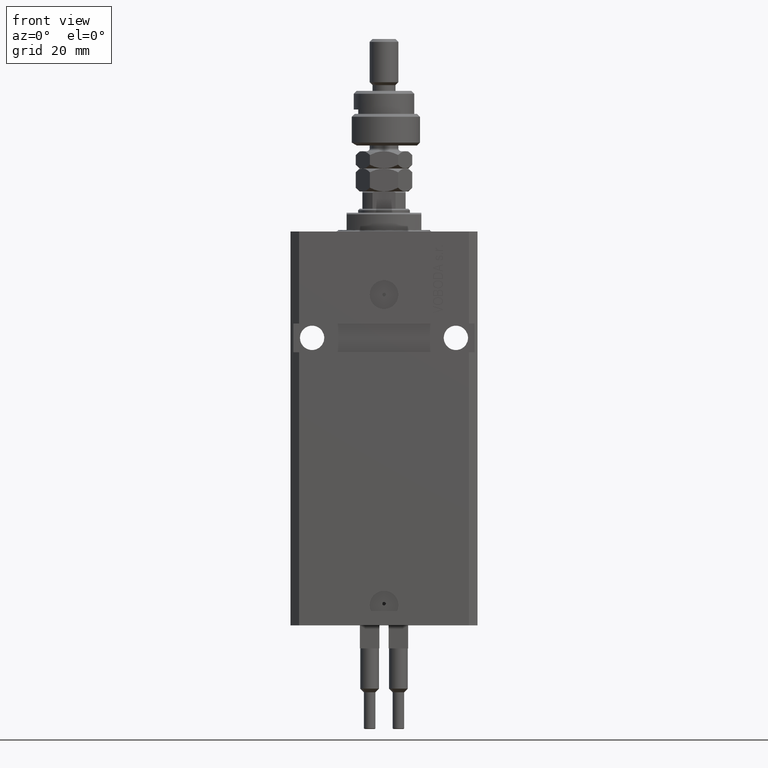
[diagram: clean part render]
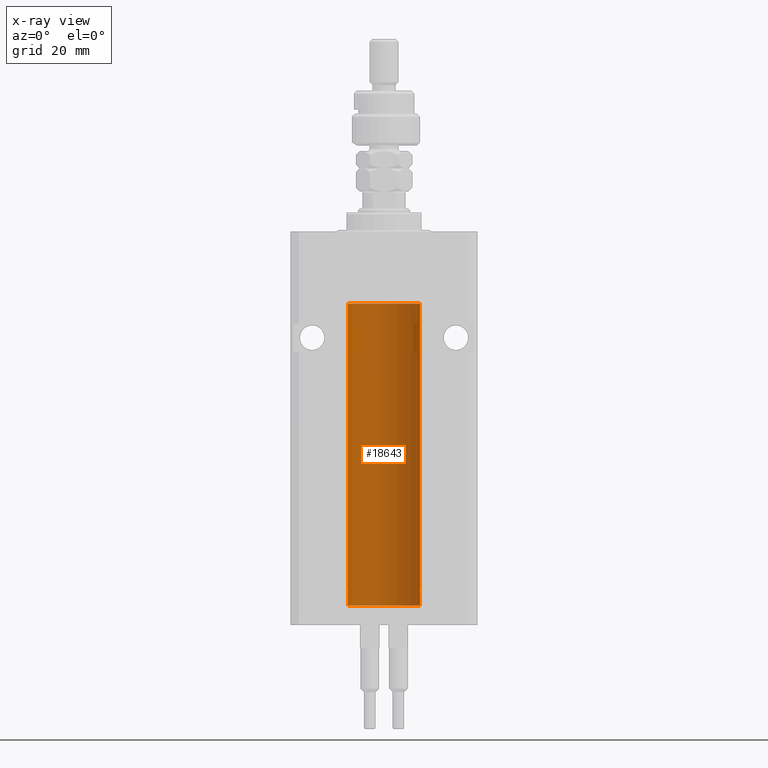
[diagram: x-ray — body ghosted, one internal face saturated and labeled with its STEP entity id]
A machine part, front view, then the same camera in x-ray: the body is ghosted and one INTERNAL B-rep face — a face not visible from any outside direction — is saturated and labeled: STEP entity #18643.
In plain terms, the highlighted cylindrical surface (edge-blend (fillet) strip) has radius 12.5 mm, axis along (0, 0, 1).
Its self-contained STEP definition (entity closure, byte-faithful):
#370 = EDGE_CURVE ( 'NONE', #4756, #39577, #29270, .T. ) ;
#867 = CARTESIAN_POINT ( 'NONE',  ( 0.000000000000000000, 0.000000000000000000, -130.0999999999999943 ) ) ;
#1098 = CARTESIAN_POINT ( 'NONE',  ( -12.50000000000000000, 1.530808498934191521E-15, -130.0999999999999943 ) ) ;
#1127 = FACE_OUTER_BOUND ( 'NONE', #25024, .T. ) ;
#1339 = ORIENTED_EDGE ( 'NONE', *, *, #50757, .T. ) ;
#1385 = DIRECTION ( 'NONE',  ( 1.000000000000000000, 0.000000000000000000, 0.000000000000000000 ) ) ;
#1662 = CARTESIAN_POINT ( 'NONE',  ( 12.50000000000017941, 3.868073647803008074E-13, -124.3749999999964047 ) ) ;
#1731 = VERTEX_POINT ( 'NONE', #20341 ) ;
#1982 = CARTESIAN_POINT ( 'NONE',  ( 12.48436522214887745, 0.6249999999996828093, -124.9184733946234758 ) ) ;
#2206 = CARTESIAN_POINT ( 'NONE',  ( -12.48436376893640265, 0.6250290278979852010, -125.0813208282447135 ) ) ;
#2490 = CARTESIAN_POINT ( 'NONE',  ( 12.49012055744648642, 0.5002956126656095126, -124.6164171020240445 ) ) ;
#3106 = CARTESIAN_POINT ( 'NONE',  ( 12.50000000000000000, 0.000000000000000000, -130.0999999999999943 ) ) ;
#3962 = AXIS2_PLACEMENT_3D ( 'NONE', #867, #21100, #1385 ) ;
#4138 = DIRECTION ( 'NONE',  ( -0.000000000000000000, -0.000000000000000000, 1.000000000000000000 ) ) ;
#4158 = VERTEX_POINT ( 'NONE', #16220 ) ;
#4756 = VERTEX_POINT ( 'NONE', #48713 ) ;
#5981 = VECTOR ( 'NONE', #14771, 1000.000000000000000 ) ;
#6556 = VECTOR ( 'NONE', #49105, 1000.000000000000000 ) ;
#6669 = CARTESIAN_POINT ( 'NONE',  ( 12.48436522214885613, 0.6250000000001550982, -125.1631274754030585 ) ) ;
#9092 = CARTESIAN_POINT ( 'NONE',  ( 0.000000000000000000, 0.000000000000000000, -130.0999999999999943 ) ) ;
#9242 = CARTESIAN_POINT ( 'NONE',  ( 12.48520578595315023, 0.6087855079133756009, -124.8365671750934780 ) ) ;
#9395 = LINE ( 'NONE', #1098, #6556 ) ;
#9401 = CARTESIAN_POINT ( 'NONE',  ( 0.000000000000000000, 0.000000000000000000, -25.10000000000000142 ) ) ;
#10046 = CARTESIAN_POINT ( 'NONE',  ( 12.49625698805480845, 0.3151108292486959339, -125.5459369568817038 ) ) ;
#10757 = CARTESIAN_POINT ( 'NONE',  ( -12.50000000000000178, 0.08260426088727608473, -124.3749999999999858 ) ) ;
#10883 = LINE ( 'NONE', #3106, #5981 ) ;
#12178 = CARTESIAN_POINT ( 'NONE',  ( 12.50000000000000000, 0.000000000000000000, -130.0999999999999943 ) ) ;
#13038 = DIRECTION ( 'NONE',  ( 0.000000000000000000, 0.000000000000000000, 1.000000000000000000 ) ) ;
#13144 = CARTESIAN_POINT ( 'NONE',  ( 12.49999999999999467, 0.1631389616600898151, -124.3750000000002274 ) ) ;
#13579 = VERTEX_POINT ( 'NONE', #49196 ) ;
#13656 = CARTESIAN_POINT ( 'NONE',  ( 12.48810305280568222, 0.5461368461738498326, -124.6852546614267538 ) ) ;
#13679 = CARTESIAN_POINT ( 'NONE',  ( 12.50000000000000000, 5.055633433180616021E-15, -125.6250000000000142 ) ) ;
#14494 = VERTEX_POINT ( 'NONE', #39318 ) ;
#14581 = ORIENTED_EDGE ( 'NONE', *, *, #370, .T. ) ;
#14771 = DIRECTION ( 'NONE',  ( -0.000000000000000000, -0.000000000000000000, 1.000000000000000000 ) ) ;
#16220 = CARTESIAN_POINT ( 'NONE',  ( -12.50000000000000000, -1.890568805888175348E-14, -124.3750000000000000 ) ) ;
#16322 = LINE ( 'NONE', #12178, #20755 ) ;
#17138 = CARTESIAN_POINT ( 'NONE',  ( -12.49631005746706691, 0.3253680783018559897, -125.5585674046538998 ) ) ;
#17315 = CARTESIAN_POINT ( 'NONE',  ( 12.49421963472024544, 0.3844519291903631952, -125.4994730364704907 ) ) ;
#17452 = B_SPLINE_CURVE_WITH_KNOTS ( 'NONE', 3,
 ( #13679, #33406, #45592, #10046, #17315, #17838, #6669, #25358 ),
 .UNSPECIFIED., .F., .F.,
 ( 4, 2, 2, 4 ),
 ( 4.913018323501965315E-18, 0.0002443481056285863075, 0.0004886962112571676276, 0.0009773924225142717210 ),
 .UNSPECIFIED. ) ;
#17838 = CARTESIAN_POINT ( 'NONE',  ( 12.48809900631782099, 0.5573988467445673001, -125.3264014793547290 ) ) ;
#18038 = CARTESIAN_POINT ( 'NONE',  ( -12.48809959379011758, 0.5462151254764870956, -125.3146137048161677 ) ) ;
#18168 = B_SPLINE_CURVE_WITH_KNOTS ( 'NONE', 3,
 ( #23195, #10757, #26588, #22683, #38525, #33865, #38782, #2206, #50719, #18038, #35403, #17138, #27616, #35908 ),
 .UNSPECIFIED., .F., .F.,
 ( 4, 2, 2, 2, 2, 2, 4 ),
 ( 3.496117753580553008E-18, 0.0002442924852390892100, 0.0004885849704781749505, 0.0009771699409563759219, 0.001221462426195476462, 0.001465754911434576785, 0.001954339881912777865 ),
 .UNSPECIFIED. ) ;
#18275 = AXIS2_PLACEMENT_3D ( 'NONE', #9092, #24915, #35150 ) ;
#18643 = ADVANCED_FACE ( 'NONE', ( #1127 ), #24488, .F. ) ;
#18752 = CIRCLE ( 'NONE', #46100, 12.50000000000000000 ) ;
#19159 = ORIENTED_EDGE ( 'NONE', *, *, #22134, .T. ) ;
#20125 = DIRECTION ( 'NONE',  ( -0.000000000000000000, -0.000000000000000000, 1.000000000000000000 ) ) ;
#20341 = CARTESIAN_POINT ( 'NONE',  ( -12.50000000000000000, 1.530808498934191521E-15, -25.10000000000000142 ) ) ;
#20543 = ORIENTED_EDGE ( 'NONE', *, *, #31306, .T. ) ;
#20755 = VECTOR ( 'NONE', #4138, 1000.000000000000000 ) ;
#21100 = DIRECTION ( 'NONE',  ( -0.000000000000000000, -0.000000000000000000, 1.000000000000000000 ) ) ;
#21433 = EDGE_CURVE ( 'NONE', #4158, #1731, #9395, .T. ) ;
#21963 = CARTESIAN_POINT ( 'NONE',  ( 12.48436522214846711, 0.6250000000078859141, -124.9999999999992326 ) ) ;
#22134 = EDGE_CURVE ( 'NONE', #13579, #4756, #17452, .T. ) ;
#22683 = CARTESIAN_POINT ( 'NONE',  ( -12.49625855304193855, 0.3150454781037954621, -124.4540280029748658 ) ) ;
#23195 = CARTESIAN_POINT ( 'NONE',  ( -12.50000000000000000, -1.890568805888175348E-14, -124.3750000000000000 ) ) ;
#24488 = CYLINDRICAL_SURFACE ( 'NONE', #3962, 12.50000000000000000 ) ;
#24896 = CIRCLE ( 'NONE', #18275, 12.50000000000000000 ) ;
#24915 = DIRECTION ( 'NONE',  ( 0.000000000000000000, 0.000000000000000000, 1.000000000000000000 ) ) ;
#25024 = EDGE_LOOP ( 'NONE', ( #40726, #42074, #29669, #19159, #14581, #20543, #1339, #33672, #29211 ) ) ;
#25358 = CARTESIAN_POINT ( 'NONE',  ( 12.48436522214846711, 0.6250000000078859141, -124.9999999999992326 ) ) ;
#26559 = EDGE_CURVE ( 'NONE', #43472, #48081, #35451, .T. ) ;
#26588 = CARTESIAN_POINT ( 'NONE',  ( -12.49915784441387068, 0.1636601911727856851, -124.3912681898942765 ) ) ;
#27616 = CARTESIAN_POINT ( 'NONE',  ( -12.49999999999999467, 0.1631761135151251485, -125.6249999999999005 ) ) ;
#28543 = EDGE_CURVE ( 'NONE', #4158, #48081, #18168, .T. ) ;
#28557 = EDGE_CURVE ( 'NONE', #14494, #43472, #24896, .T. ) ;
#28865 = DIRECTION ( 'NONE',  ( 1.000000000000000000, 0.000000000000000000, 0.000000000000000000 ) ) ;
#29211 = ORIENTED_EDGE ( 'NONE', *, *, #28543, .T. ) ;
#29270 = B_SPLINE_CURVE_WITH_KNOTS ( 'NONE', 3,
 ( #21963, #1982, #9242, #13656, #2490, #29492, #13144, #45323 ),
 .UNSPECIFIED., .F., .F.,
 ( 4, 2, 2, 4 ),
 ( 0.0009773924225142717210, 0.001221629287363824694, 0.001465866152213377450, 0.001954339881912483395 ),
 .UNSPECIFIED. ) ;
#29492 = CARTESIAN_POINT ( 'NONE',  ( 12.49631206032075781, 0.3252904079142953098, -124.4413970021492872 ) ) ;
#29669 = ORIENTED_EDGE ( 'NONE', *, *, #35791, .T. ) ;
#29818 = CARTESIAN_POINT ( 'NONE',  ( 12.50000000000000000, 0.000000000000000000, -25.10000000000000142 ) ) ;
#31306 = EDGE_CURVE ( 'NONE', #39577, #43675, #10883, .T. ) ;
#33406 = CARTESIAN_POINT ( 'NONE',  ( 12.50000000000000000, 0.08262306818362785688, -125.6249999999999858 ) ) ;
#33672 = ORIENTED_EDGE ( 'NONE', *, *, #21433, .F. ) ;
#33865 = CARTESIAN_POINT ( 'NONE',  ( -12.48810268015257563, 0.5573155909661203777, -124.6734741009386909 ) ) ;
#33947 = VECTOR ( 'NONE', #20125, 1000.000000000000000 ) ;
#34802 = CARTESIAN_POINT ( 'NONE',  ( -12.50000000000000000, 1.530808498934191521E-15, -130.0999999999999943 ) ) ;
#35150 = DIRECTION ( 'NONE',  ( 1.000000000000000000, 0.000000000000000000, 0.000000000000000000 ) ) ;
#35403 = CARTESIAN_POINT ( 'NONE',  ( -12.49011732893843707, 0.5003763274120269777, -125.3834811128928806 ) ) ;
#35451 = LINE ( 'NONE', #47903, #33947 ) ;
#35791 = EDGE_CURVE ( 'NONE', #14494, #13579, #16322, .T. ) ;
#35908 = CARTESIAN_POINT ( 'NONE',  ( -12.50000000000017941, 3.883381307462307207E-13, -125.6250000000035953 ) ) ;
#38525 = CARTESIAN_POINT ( 'NONE',  ( -12.49422197749723829, 0.3843754434364221040, -124.5004709956809705 ) ) ;
#38782 = CARTESIAN_POINT ( 'NONE',  ( -12.48436813453758631, 0.6249418250771061611, -124.8366899679892441 ) ) ;
#39318 = CARTESIAN_POINT ( 'NONE',  ( 12.50000000000000000, 0.000000000000000000, -130.0999999999999943 ) ) ;
#39577 = VERTEX_POINT ( 'NONE', #1662 ) ;
#40726 = ORIENTED_EDGE ( 'NONE', *, *, #26559, .F. ) ;
#42068 = CARTESIAN_POINT ( 'NONE',  ( -12.50000000000017941, 3.883381307462307207E-13, -125.6250000000035953 ) ) ;
#42074 = ORIENTED_EDGE ( 'NONE', *, *, #28557, .F. ) ;
#43472 = VERTEX_POINT ( 'NONE', #34802 ) ;
#43675 = VERTEX_POINT ( 'NONE', #29818 ) ;
#45323 = CARTESIAN_POINT ( 'NONE',  ( 12.50000000000017941, 3.868073647803008074E-13, -124.3749999999964047 ) ) ;
#45592 = CARTESIAN_POINT ( 'NONE',  ( 12.49915742890631876, 0.1636982395582410321, -125.6087239784702518 ) ) ;
#46100 = AXIS2_PLACEMENT_3D ( 'NONE', #9401, #13038, #28865 ) ;
#47903 = CARTESIAN_POINT ( 'NONE',  ( -12.50000000000000000, 1.530808498934191521E-15, -130.0999999999999943 ) ) ;
#48081 = VERTEX_POINT ( 'NONE', #42068 ) ;
#48713 = CARTESIAN_POINT ( 'NONE',  ( 12.48436522214846711, 0.6250000000078859141, -124.9999999999992326 ) ) ;
#49105 = DIRECTION ( 'NONE',  ( -0.000000000000000000, -0.000000000000000000, 1.000000000000000000 ) ) ;
#49196 = CARTESIAN_POINT ( 'NONE',  ( 12.50000000000000000, 5.055633433180616021E-15, -125.6250000000000142 ) ) ;
#50719 = CARTESIAN_POINT ( 'NONE',  ( -12.48520330846398174, 0.6088355886774048376, -125.1632543185256310 ) ) ;
#50757 = EDGE_CURVE ( 'NONE', #43675, #1731, #18752, .T. ) ;